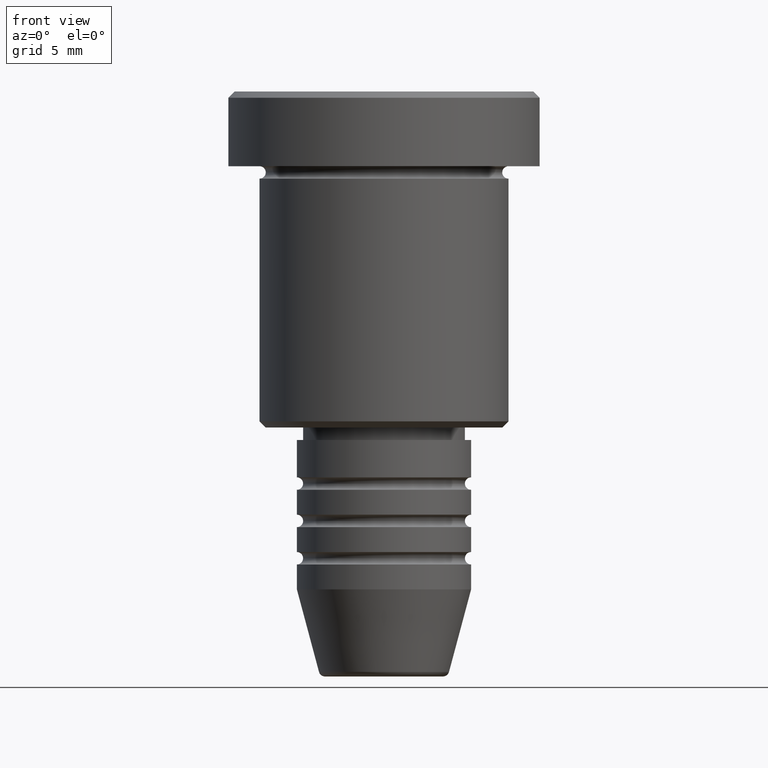
[diagram: clean part render]
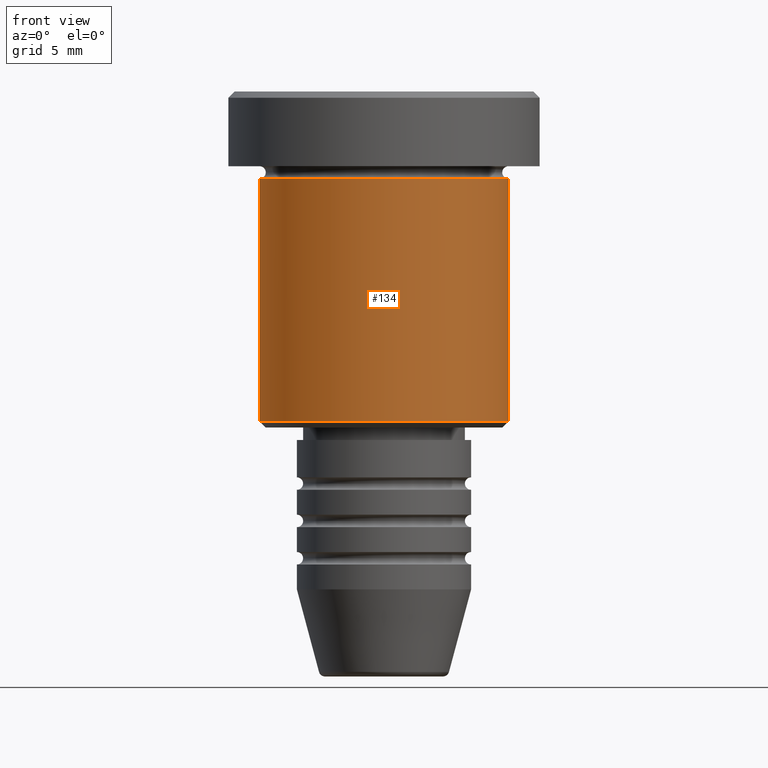
[diagram: same view with one face highlighted and labeled with its STEP entity id]
A machine part, front view. The second image highlights one B-rep face of the part: STEP entity #134.
In plain terms, the highlighted cylindrical surface (partial cylindrical patch) has radius 10 mm, axis along (-0, -0, 1).
Its self-contained STEP definition (entity closure, byte-faithful):
#6 = VERTEX_POINT ( 'NONE', #249 ) ;
#16 = EDGE_CURVE ( 'NONE', #335, #887, #194, .T. ) ;
#95 = ORIENTED_EDGE ( 'NONE', *, *, #380, .F. ) ;
#134 = ADVANCED_FACE ( 'NONE', ( #534 ), #472, .T. ) ;
#175 = AXIS2_PLACEMENT_3D ( 'NONE', #1077, #267, #630 ) ;
#194 = CIRCLE ( 'NONE', #852, 10.00000000000000000 ) ;
#195 = AXIS2_PLACEMENT_3D ( 'NONE', #203, #838, #458 ) ;
#203 = CARTESIAN_POINT ( 'NONE',  ( 0.000000000000000000, 0.000000000000000000, 0.000000000000000000 ) ) ;
#244 = VECTOR ( 'NONE', #869, 1000.000000000000000 ) ;
#249 = CARTESIAN_POINT ( 'NONE',  ( 10.00000000000000000, 0.000000000000000000, -26.50000000000001421 ) ) ;
#267 = DIRECTION ( 'NONE',  ( -0.000000000000000000, -0.000000000000000000, 1.000000000000000000 ) ) ;
#308 = EDGE_CURVE ( 'NONE', #1041, #6, #683, .T. ) ;
#319 = CARTESIAN_POINT ( 'NONE',  ( -10.00000000000000000, 1.224646799147353256E-15, -26.50000000000001421 ) ) ;
#323 = LINE ( 'NONE', #510, #244 ) ;
#331 = CARTESIAN_POINT ( 'NONE',  ( 10.00000000000000000, 0.000000000000000000, 0.000000000000000000 ) ) ;
#335 = VERTEX_POINT ( 'NONE', #811 ) ;
#380 = EDGE_CURVE ( 'NONE', #1041, #335, #323, .T. ) ;
#405 = CARTESIAN_POINT ( 'NONE',  ( 10.00000000000000000, 0.000000000000000000, -6.999999999999996447 ) ) ;
#458 = DIRECTION ( 'NONE',  ( 1.000000000000000000, 0.000000000000000000, 0.000000000000000000 ) ) ;
#468 = VECTOR ( 'NONE', #789, 1000.000000000000000 ) ;
#472 = CYLINDRICAL_SURFACE ( 'NONE', #195, 10.00000000000000000 ) ;
#508 = LINE ( 'NONE', #331, #468 ) ;
#510 = CARTESIAN_POINT ( 'NONE',  ( -10.00000000000000000, 1.224646799147353256E-15, 0.000000000000000000 ) ) ;
#534 = FACE_OUTER_BOUND ( 'NONE', #647, .T. ) ;
#617 = ORIENTED_EDGE ( 'NONE', *, *, #308, .T. ) ;
#630 = DIRECTION ( 'NONE',  ( -1.000000000000000000, 0.000000000000000000, 0.000000000000000000 ) ) ;
#638 = ORIENTED_EDGE ( 'NONE', *, *, #742, .T. ) ;
#647 = EDGE_LOOP ( 'NONE', ( #95, #617, #638, #1136 ) ) ;
#683 = CIRCLE ( 'NONE', #175, 10.00000000000000000 ) ;
#709 = DIRECTION ( 'NONE',  ( 1.000000000000000000, 0.000000000000000000, 0.000000000000000000 ) ) ;
#742 = EDGE_CURVE ( 'NONE', #6, #887, #508, .T. ) ;
#789 = DIRECTION ( 'NONE',  ( -0.000000000000000000, -0.000000000000000000, 1.000000000000000000 ) ) ;
#811 = CARTESIAN_POINT ( 'NONE',  ( -10.00000000000000000, 1.224646799147353256E-15, -6.999999999999996447 ) ) ;
#838 = DIRECTION ( 'NONE',  ( -0.000000000000000000, -0.000000000000000000, 1.000000000000000000 ) ) ;
#852 = AXIS2_PLACEMENT_3D ( 'NONE', #898, #880, #709 ) ;
#869 = DIRECTION ( 'NONE',  ( -0.000000000000000000, -0.000000000000000000, 1.000000000000000000 ) ) ;
#880 = DIRECTION ( 'NONE',  ( -0.000000000000000000, -0.000000000000000000, 1.000000000000000000 ) ) ;
#887 = VERTEX_POINT ( 'NONE', #405 ) ;
#898 = CARTESIAN_POINT ( 'NONE',  ( 0.000000000000000000, 0.000000000000000000, -6.999999999999996447 ) ) ;
#1041 = VERTEX_POINT ( 'NONE', #319 ) ;
#1077 = CARTESIAN_POINT ( 'NONE',  ( 0.000000000000000000, 0.000000000000000000, -26.50000000000001421 ) ) ;
#1136 = ORIENTED_EDGE ( 'NONE', *, *, #16, .F. ) ;